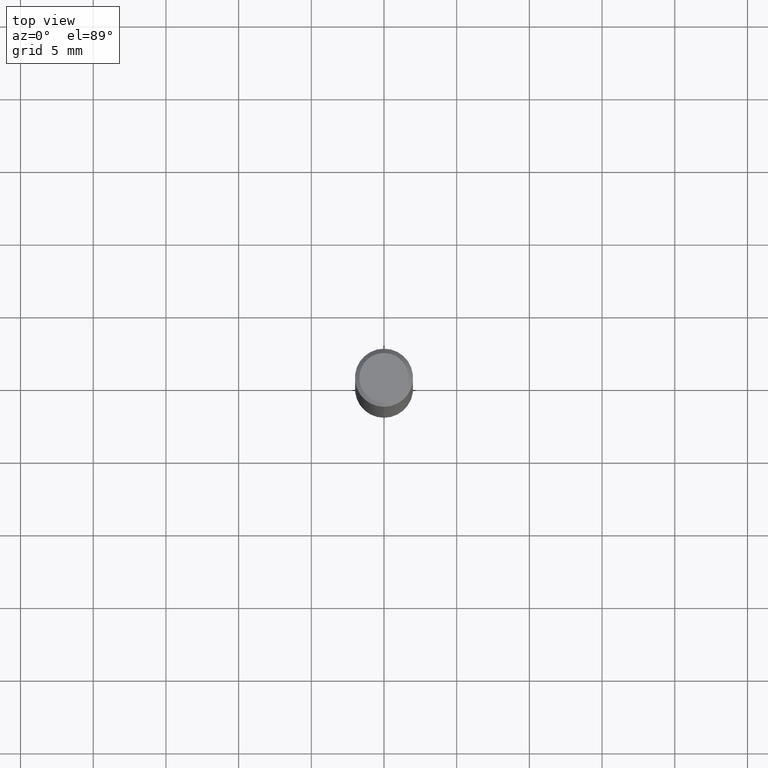
[diagram: clean part render]
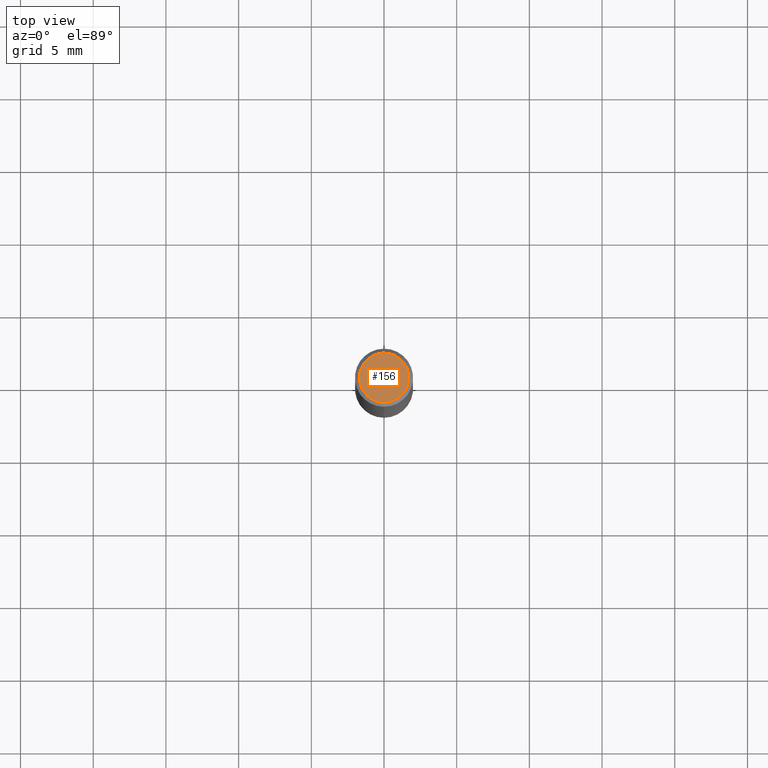
[diagram: same view with one face highlighted and labeled with its STEP entity id]
A machine part, top view. The second image highlights one B-rep face of the part: STEP entity #156.
In plain terms, the highlighted planar face has unit normal (-0, 0, 1).
Its self-contained STEP definition (entity closure, byte-faithful):
#94=VERTEX_POINT('',#221);
#106=EDGE_CURVE('',#94,#186,#234,.T.);
#156=ADVANCED_FACE('',(#290),#291,.T.);
#172=EDGE_CURVE('',#186,#94,#308,.T.);
#186=VERTEX_POINT('',#325);
#221=CARTESIAN_POINT('',(0.0,1.7,0.0));
#234=CIRCLE('',#372,1.7);
#290=FACE_OUTER_BOUND('',#445,.T.);
#291=PLANE('',#446);
#308=CIRCLE('',#468,1.7);
#325=CARTESIAN_POINT('',(2.08183080149804E-016,-1.7,0.0));
#372=AXIS2_PLACEMENT_3D('',#516,#517,#518);
#445=EDGE_LOOP('',(#597,#598));
#446=AXIS2_PLACEMENT_3D('',#599,#600,#601);
#468=AXIS2_PLACEMENT_3D('',#616,#617,#618);
#516=CARTESIAN_POINT('',(0.0,0.0,0.0));
#517=DIRECTION('',(0.0,0.0,-1.0));
#518=DIRECTION('',(0.0,1.0,0.0));
#597=ORIENTED_EDGE('',*,*,#106,.F.);
#598=ORIENTED_EDGE('',*,*,#172,.F.);
#599=CARTESIAN_POINT('',(0.0,0.85,0.0));
#600=DIRECTION('',(-0.0,0.0,1.0));
#601=DIRECTION('',(0.0,-1.0,0.0));
#616=CARTESIAN_POINT('',(0.0,0.0,0.0));
#617=DIRECTION('',(0.0,0.0,-1.0));
#618=DIRECTION('',(0.0,1.0,0.0));